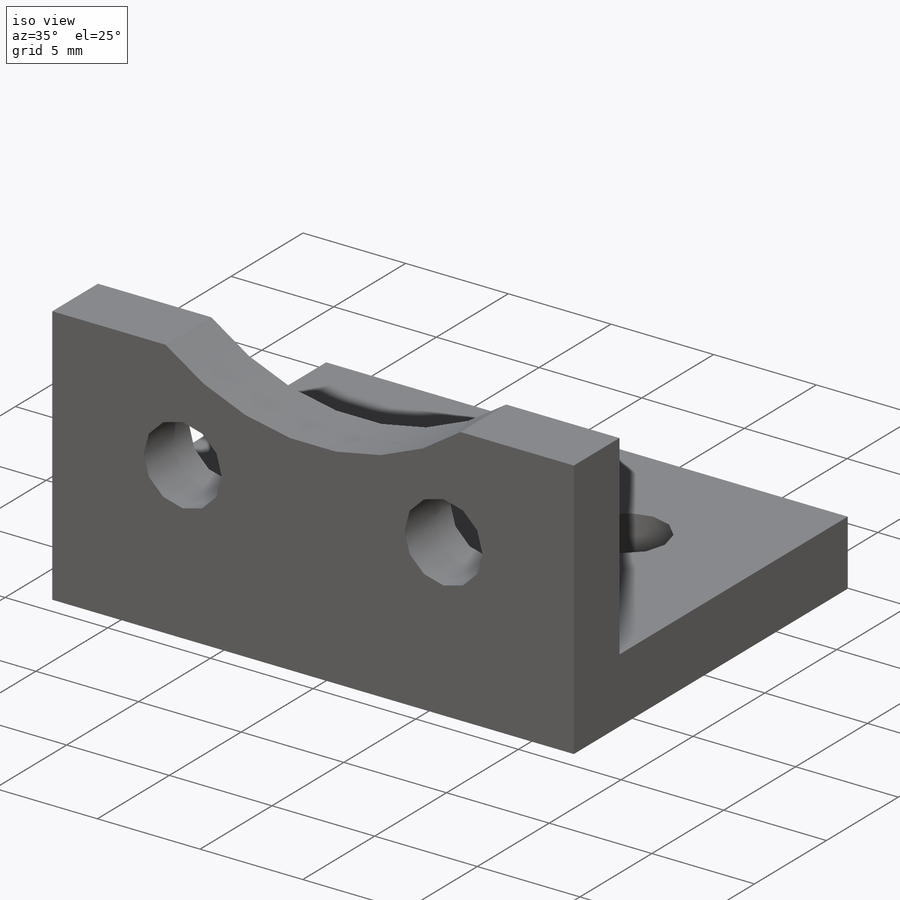
[diagram: iso view]
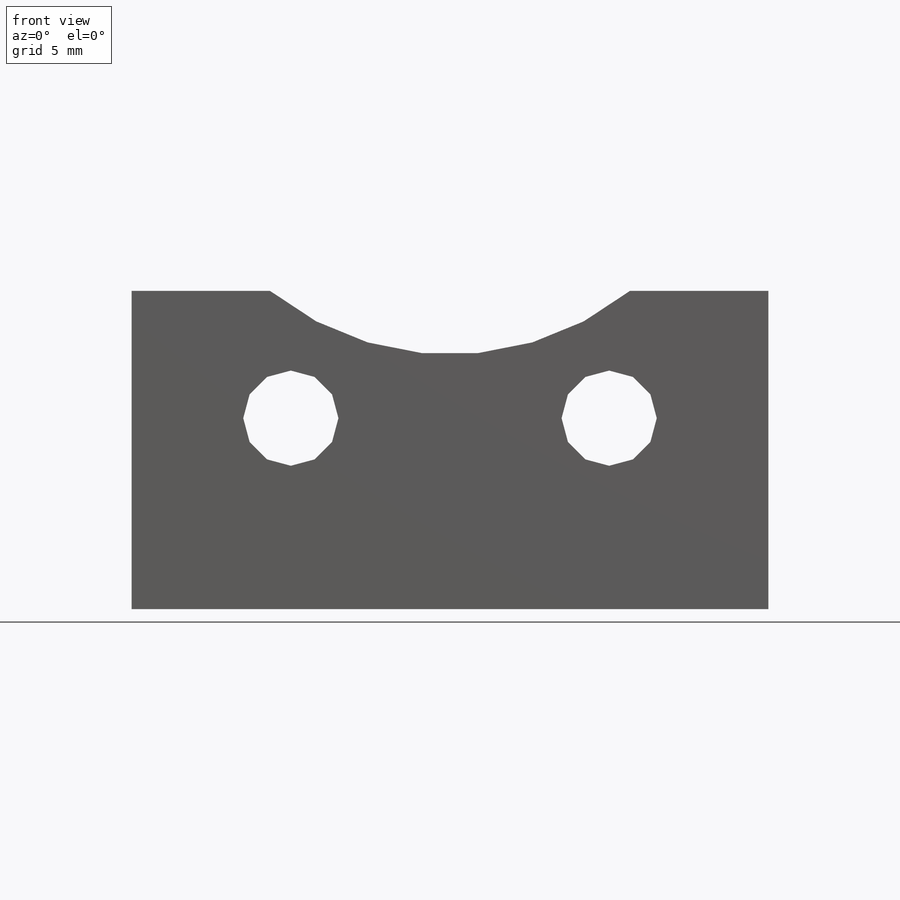
[diagram: front view]
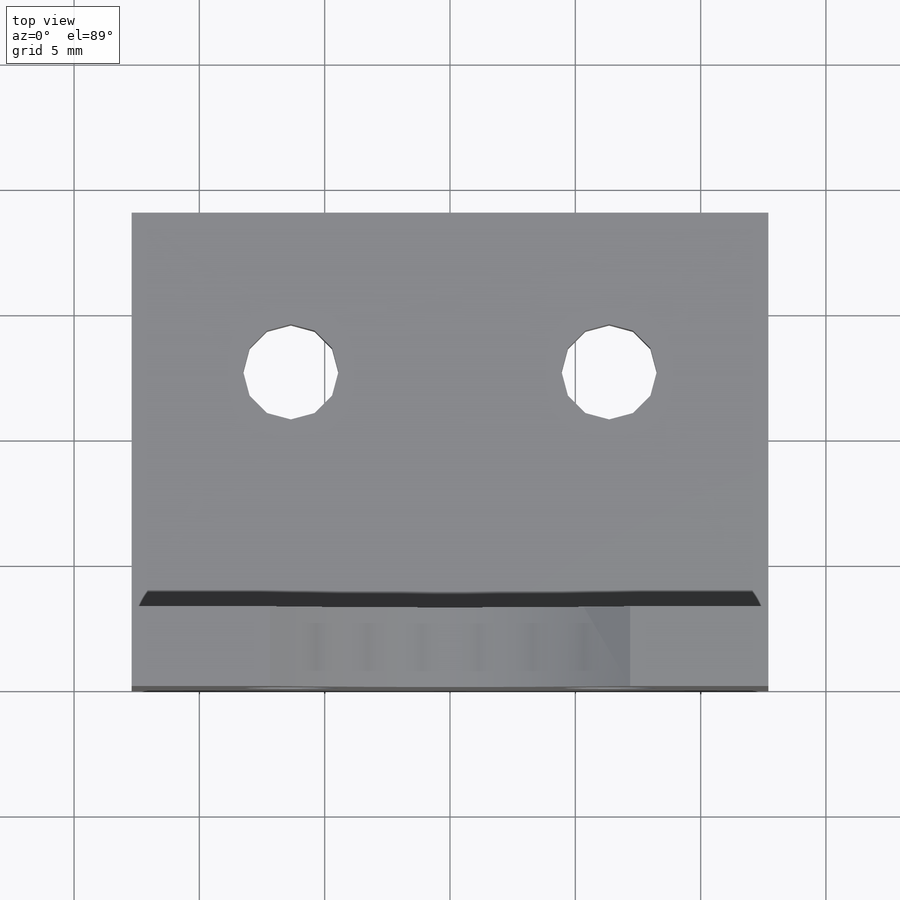
[diagram: top view]
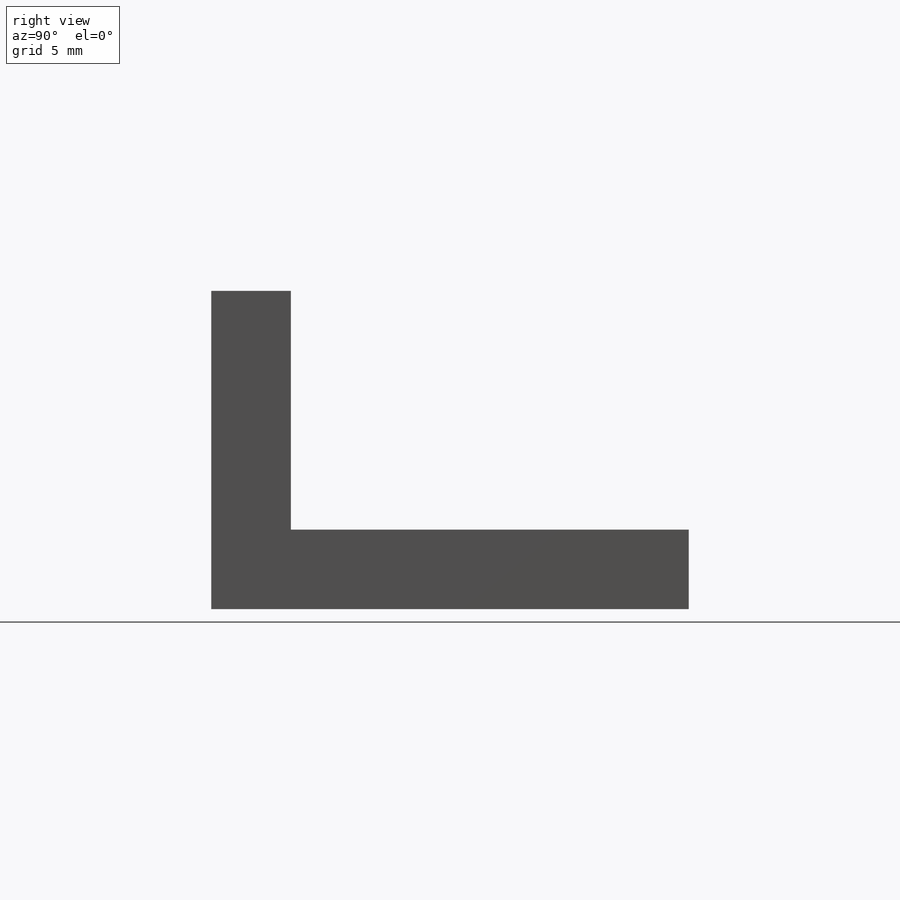
[diagram: right view]
SOLIDWORKS PART (.sldprt)
format: sldprt  version: not decoded by parser v0  size: 301,568 bytes
history: native  units: mm
features: sketch x4, material x1, extrude x1, hole x1, cut_extrude x1 (+11 scaffold rows collapsed)
feature tree (19):
  scaffold x11  (default folders/planes/origin — collapsed)
  material  "6061 Alloy"
  sketch  "Sketch2"  dims[D1=19.05mm D2=12.7mm D3=3.175mm D4=3.175mm]
  extrude  "Extrude1"  Depth=12.7mm
  hole  "#6 Clearance Hole1"  Diameter=3.7973mm Depth=12.7mm
  sketch  "3DSketch1"  dims[c1.D1=5.08mm c1.D2=~4.537003mm c1.D9=3.175mm c1.D3=~4.440145mm c2.D2=3.175mm c2.D4=6.35mm c2.D5=6.35mm c2.D6=~3.618905mm c3.D2=3.175mm c3.D7=~3.194541mm c4.D2=3.175mm c4.D8=6.35mm c5.D2=12.7mm c5.D3=12.7mm]
  sketch  "Sketch3"  dims[hole-wizard template sketch: 50 standard entries collapsed; hole parameters above]
  sketch  "Sketch4"  dims[c1.D3=22.86mm c1.D4=3.7973mm c1.D1=12.7mm c1.D2=18.415mm c2.D4=13.97mm]
  cut_extrude  "Cut-Extrude1"  [1 undecoded]
decode coverage: 6 of 7 modeling features carry decoded parameters
note: ~ marks probable driven/reference dimensions
note: 1 parameter value undecoded
note: suppression state not decoded; provenance and decode notes live in map.json
